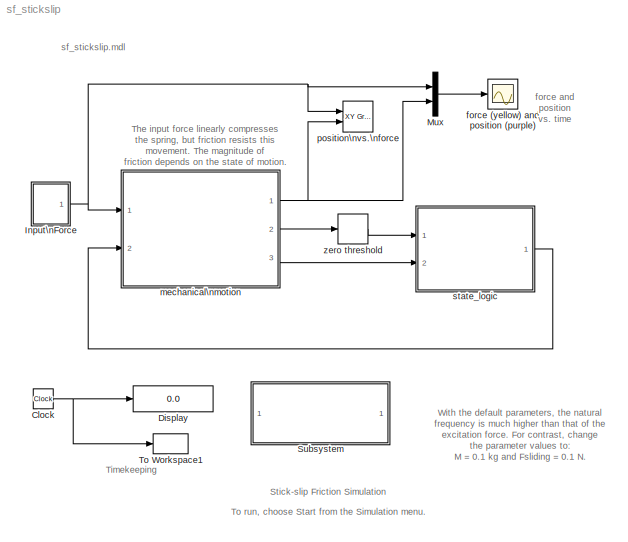
MODEL sf_stickslip
KIND model
CONFIG PreLoadFcn = load('sf_stickslipdat')
BLOCK [Clock] Clock
  Decimation = 10
BLOCK [Display] Display
  Decimation = 1
  Ports = [1]
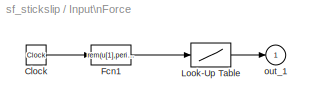
BLOCK [SubSystem] Input\nForce
  MaskCallbackString = |
  MaskDescription = Repeating table.
  MaskDisplay = plot([rep_seq_t,rep_seq_t+period,rep_seq_t+2*period,rep_seq_t(1)+3*period],[rep_seq_y,rep_seq_y,rep_seq_y,rep_seq_y(1)])
  MaskEnableString = on,on
  MaskHelp = Repeats cycle given in table. Time values should be monotonically increasing.
  MaskIconFrame = on
  MaskIconOpaque = on
  MaskIconRotate = none
  MaskIconUnits = autoscale
  MaskInitialization = period = max(rep_seq_t);\n
  MaskPromptString = Time values:|Output values:
  MaskStyleString = edit,edit
  MaskTabNameString = ,
  MaskToolTipString = on,on
  MaskTunableValueString = on,on
  MaskType = Repeating table
  MaskValueString = [0 5 10]|[0 5 0]
  MaskVarAliasString = ,
  MaskVariables = rep_seq_t=@1;rep_seq_y=@2;
  MaskVisibilityString = on,on
  MinAlgLoopOccurrences = off
  Ports = [0, 1]
  PropExecContextAcrossSSBoundary = on
  RTWSystemCode = Auto
  TreatAsAtomicUnit = off
BLOCK [Clock] Input\nForce/Clock
  Decimation = 10
BLOCK [Fcn] Input\nForce/Fcn1
  Expr = rem(u[1],period)
BLOCK [Lookup] Input\nForce/Look-Up Table
  DialogController = Simulink.DDGSource
  InputValues = rep_seq_t
  OutputValues = rep_seq_y
BLOCK [Outport] Input\nForce/out_1
  IconDisplay = Port number
  InitialOutput = 0
BLOCK [Mux] Mux
  Inputs = 2
  Ports = [2, 1]
BLOCK [SubSystem] Subsystem
  MaskDisplay = disp('edit\\nparameters')
  MaskIconFrame = on
  MaskIconOpaque = on
  MaskIconRotate = none
  MaskIconUnits = autoscale
  MinAlgLoopOccurrences = off
  OpenFcn = sf_stickslipedit
  Ports = []
  PropExecContextAcrossSSBoundary = on
  RTWSystemCode = Auto
  TreatAsAtomicUnit = off
BLOCK [ToWorkspace] To Workspace1
  MaxDataPoints = inf
  SampleTime = -1
  SaveFormat = Array
  VariableName = t
BLOCK [Scope] force (yellow) and position (purple)
  DataFormat = Array
  NumInputPorts = 1
  Ports = [1]
  TickLabels = on
  YMax = 10
  ZoomMode = yonly
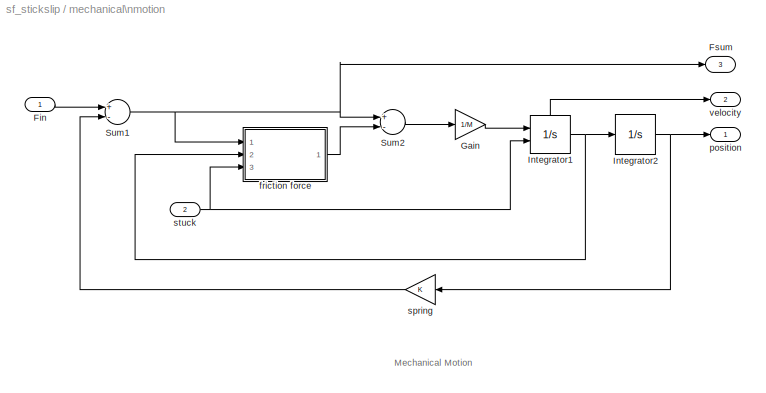
BLOCK [SubSystem] mechanical\nmotion
  MaskDisplay = plot(-2,-1,7,3,[0 5],[0 0],[1 1 3 3],[0 2 2 0],[4.5 4.5],[0 3.5],[3 3.25 3.5 3.75 4 4.25 4.5], [1 1 .5  1.5  .5 1 1],[0 1],[1 1],[.5 1 .5],[.5 1 1.5],\n[0 .5],[-.5 0],[1 1.5],[-.5 0],[2 2.5],[-.5 0],[3 3.5],[-.5 0],[4 5],[-.5 .5],\n[4.5 5],[1 1.5],[4.5 5],[2 2.5],[4.5 5],[3 3.5],[max(-0.5:0.5:2.5, 1);min(1.5:0.5:4.5,3)],[min(0.5:0.5:3.5, 2); max(-1.5:0.5:1.5, 0)])
  MaskIconFrame = on
  MaskIconOpaque = off
  MaskIconRotate = none
  MaskIconUnits = autoscale
  MinAlgLoopOccurrences = off
  Ports = [2, 3]
  PropExecContextAcrossSSBoundary = on
  RTWSystemCode = Auto
  TreatAsAtomicUnit = off
BLOCK [Inport] mechanical\nmotion/Fin
  IconDisplay = Port number
  LatchInput = off
  Port = 1
BLOCK [Outport] mechanical\nmotion/Fsum
  IconDisplay = Port number
  InitialOutput = 0
  Port = 3
BLOCK [Gain] mechanical\nmotion/Gain
  Gain = 1/M
BLOCK [Integrator] mechanical\nmotion/Integrator1
  ExternalReset = rising
  Ports = [2, 1, 0, 0, 1]
  ShowStatePort = on
BLOCK [Integrator] mechanical\nmotion/Integrator2
  Ports = [1, 1]
BLOCK [Sum] mechanical\nmotion/Sum1
  Inputs = +-
  Ports = [2, 1]
BLOCK [Sum] mechanical\nmotion/Sum2
  Inputs = +-
  Ports = [2, 1]
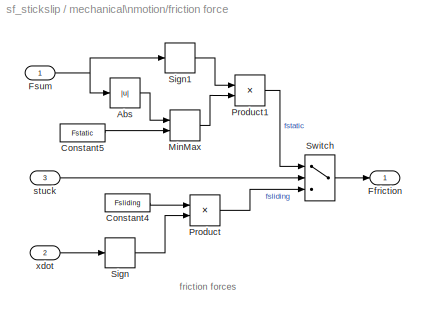
BLOCK [SubSystem] mechanical\nmotion/friction force
  MinAlgLoopOccurrences = off
  Ports = [3, 1]
  PropExecContextAcrossSSBoundary = on
  RTWSystemCode = Auto
  TreatAsAtomicUnit = off
BLOCK [Abs] mechanical\nmotion/friction force/Abs
BLOCK [Constant] mechanical\nmotion/friction force/Constant4
  Value = Fsliding
BLOCK [Constant] mechanical\nmotion/friction force/Constant5
  Value = Fstatic
BLOCK [Outport] mechanical\nmotion/friction force/Ffriction
  IconDisplay = Port number
  InitialOutput = 0
BLOCK [Inport] mechanical\nmotion/friction force/Fsum
  IconDisplay = Port number
  LatchInput = off
  Port = 1
BLOCK [MinMax] mechanical\nmotion/friction force/MinMax
  Function = min
  Inputs = 2
  Ports = [2, 1]
BLOCK [Product] mechanical\nmotion/friction force/Product
  Ports = [2, 1]
BLOCK [Product] mechanical\nmotion/friction force/Product1
  Ports = [2, 1]
BLOCK [Signum] mechanical\nmotion/friction force/Sign
BLOCK [Signum] mechanical\nmotion/friction force/Sign1
BLOCK [Switch] mechanical\nmotion/friction force/Switch
  Threshold = .5
BLOCK [Inport] mechanical\nmotion/friction force/stuck
  IconDisplay = Port number
  LatchInput = off
  Port = 3
BLOCK [Inport] mechanical\nmotion/friction force/xdot
  IconDisplay = Port number
  LatchInput = off
  Port = 2
BLOCK [Outport] mechanical\nmotion/position
  IconDisplay = Port number
  InitialOutput = 0
BLOCK [Gain] mechanical\nmotion/spring
  Gain = K
BLOCK [Inport] mechanical\nmotion/stuck
  IconDisplay = Port number
  LatchInput = off
  Port = 2
BLOCK [Outport] mechanical\nmotion/velocity
  IconDisplay = Port number
  InitialOutput = 0
  Port = 2
BLOCK [Reference] position\nvs.\nforce  REF=simulink/Sinks/XY Graph
  Ports = [2]
  ShowPortLabels = on
  SourceBlock = simulink/Sinks/XY Graph
  SourceType = XY scope.
  st = -1
  xmax = 6
  xmin = -1
  ymax = 6
  ymin = -1
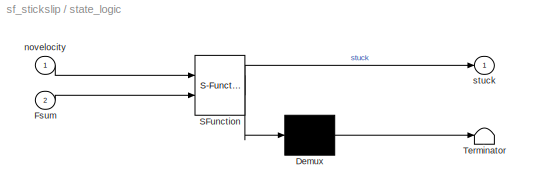
BLOCK [SubSystem] state_logic
  MaskDescription = Stateflow diagram
  MaskDisplay = plot(sf('Private','sfblk','xIcon'),sf('Private','sfblk','yIcon'));text(0.5,0,sf('Private', 'sfblk', 'tIcon'),'HorizontalAl','Center','VerticalAl','Bottom');
  MaskIconFrame = off
  MaskIconOpaque = off
  MaskIconRotate = none
  MaskIconUnits = autoscale
  MaskSelfModifiable = on
  MaskType = Stateflow
  MinAlgLoopOccurrences = off
  Ports = [2, 1]
  PropExecContextAcrossSSBoundary = on
  RTWSystemCode = Auto
  TreatAsAtomicUnit = off
BLOCK [Demux] state_logic/ Demux 
  Outputs = 1
  Ports = [1, 1]
BLOCK [S-Function] state_logic/ SFunction 
  FunctionName = sf_sfun
  PortCounts = [2 2]
  Ports = [2, 2]
  Tag = Stateflow S-Function sf_stickslip 1
BLOCK [Terminator] state_logic/ Terminator 
BLOCK [Inport] state_logic/Fsum
  IconDisplay = Port number
  LatchInput = off
  Port = 2
BLOCK [Inport] state_logic/novelocity
  IconDisplay = Port number
  LatchInput = off
  Port = 1
BLOCK [Outport] state_logic/stuck
  IconDisplay = Port number
BLOCK [HitCross] zero threshold
  HitCrossingDirection = either
  Ports = [1, 1]
ANNOTATION (root): Stick-slip Friction Simulation
ANNOTATION (root): The input force linearly compresses \nthe spring, but friction resists this \nmovement. The magnitude of\nfriction depends on the state of motion.
ANNOTATION (root): Timekeeping
ANNOTATION (root): To run, choose Start from the Simulation menu.
ANNOTATION (root): With the default parameters, the natural \nfrequency is much higher than that of the \nexcitation force. For contrast, change \nthe parameter values to: \nM = 0.1 kg and Fsliding = 0.1 N.
ANNOTATION (root): force and\nposition\nvs. time
ANNOTATION (root): sf_stickslip.mdl
ANNOTATION mechanical\nmotion: Mechanical Motion
ANNOTATION mechanical\nmotion/friction force: friction forces
NET Clock:1 -> Display:1, To Workspace1:1
LINE Input\nForce/Clock:1 -> Input\nForce/Fcn1:1
LINE Input\nForce/Fcn1:1 -> Input\nForce/Look-Up Table:1
LINE Input\nForce/Look-Up Table:1 -> Input\nForce/out_1:1
NET Input\nForce:1 -> Mux:1, mechanical\nmotion:1, position\nvs.\nforce:1
LINE Mux:1 -> force (yellow) and position (purple):1
LINE mechanical\nmotion/Fin:1 -> mechanical\nmotion/Sum1:1
LINE mechanical\nmotion/Gain:1 -> mechanical\nmotion/Integrator1:1
NET mechanical\nmotion/Integrator1:1 -> mechanical\nmotion/Integrator2:1, mechanical\nmotion/friction force:2
LINE mechanical\nmotion/Integrator1:state -> mechanical\nmotion/velocity:1
NET mechanical\nmotion/Integrator2:1 -> mechanical\nmotion/position:1, mechanical\nmotion/spring:1
NET mechanical\nmotion/Sum1:1 -> mechanical\nmotion/Fsum:1, mechanical\nmotion/Sum2:1, mechanical\nmotion/friction force:1
LINE mechanical\nmotion/Sum2:1 -> mechanical\nmotion/Gain:1
LINE mechanical\nmotion/friction force/Abs:1 -> mechanical\nmotion/friction force/MinMax:1
LINE mechanical\nmotion/friction force/Constant4:1 -> mechanical\nmotion/friction force/Product:1
LINE mechanical\nmotion/friction force/Constant5:1 -> mechanical\nmotion/friction force/MinMax:2
NET mechanical\nmotion/friction force/Fsum:1 -> mechanical\nmotion/friction force/Abs:1, mechanical\nmotion/friction force/Sign1:1
LINE mechanical\nmotion/friction force/MinMax:1 -> mechanical\nmotion/friction force/Product1:2
LINE mechanical\nmotion/friction force/Product1:1 -> mechanical\nmotion/friction force/Switch:1
LINE mechanical\nmotion/friction force/Product:1 -> mechanical\nmotion/friction force/Switch:3
LINE mechanical\nmotion/friction force/Sign1:1 -> mechanical\nmotion/friction force/Product1:1
LINE mechanical\nmotion/friction force/Sign:1 -> mechanical\nmotion/friction force/Product:2
LINE mechanical\nmotion/friction force/Switch:1 -> mechanical\nmotion/friction force/Ffriction:1
LINE mechanical\nmotion/friction force/stuck:1 -> mechanical\nmotion/friction force/Switch:2
LINE mechanical\nmotion/friction force/xdot:1 -> mechanical\nmotion/friction force/Sign:1
LINE mechanical\nmotion/friction force:1 -> mechanical\nmotion/Sum2:2
LINE mechanical\nmotion/spring:1 -> mechanical\nmotion/Sum1:2
NET mechanical\nmotion/stuck:1 -> mechanical\nmotion/Integrator1:2, mechanical\nmotion/friction force:3
NET mechanical\nmotion:1 -> Mux:2, position\nvs.\nforce:2
LINE mechanical\nmotion:2 -> zero threshold:1
LINE mechanical\nmotion:3 -> state_logic:2
LINE state_logic/ Demux :1 -> state_logic/ Terminator :1
LINE state_logic/ SFunction :1 -> state_logic/ Demux :1
LINE state_logic/ SFunction :2 -> state_logic/stuck:1
LINE state_logic/Fsum:1 -> state_logic/ SFunction :2
LINE state_logic/novelocity:1 -> state_logic/ SFunction :1
LINE state_logic:1 -> mechanical\nmotion:2
LINE zero threshold:1 -> state_logic:1
note: NET lines group one-source signal fan-out (src -> all destinations, sorted); 1:1 wires keep LINE
CHART state_logic states=3 transitions=3
  STATE_LABEL 'state_of_motion'
  STATE_LABEL 'stuck/\\nentry: stuck = 1;\\n'
  STATE_LABEL 'sliding/\\nentry: stuck = 0;'
